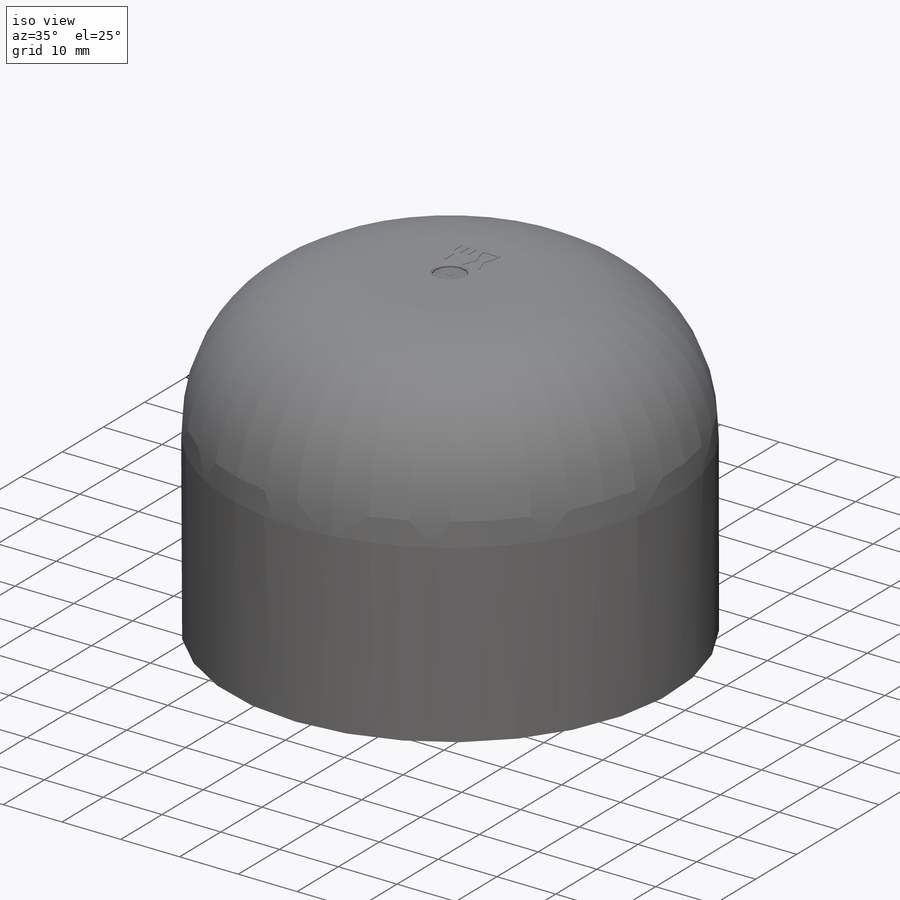
[diagram: iso view]
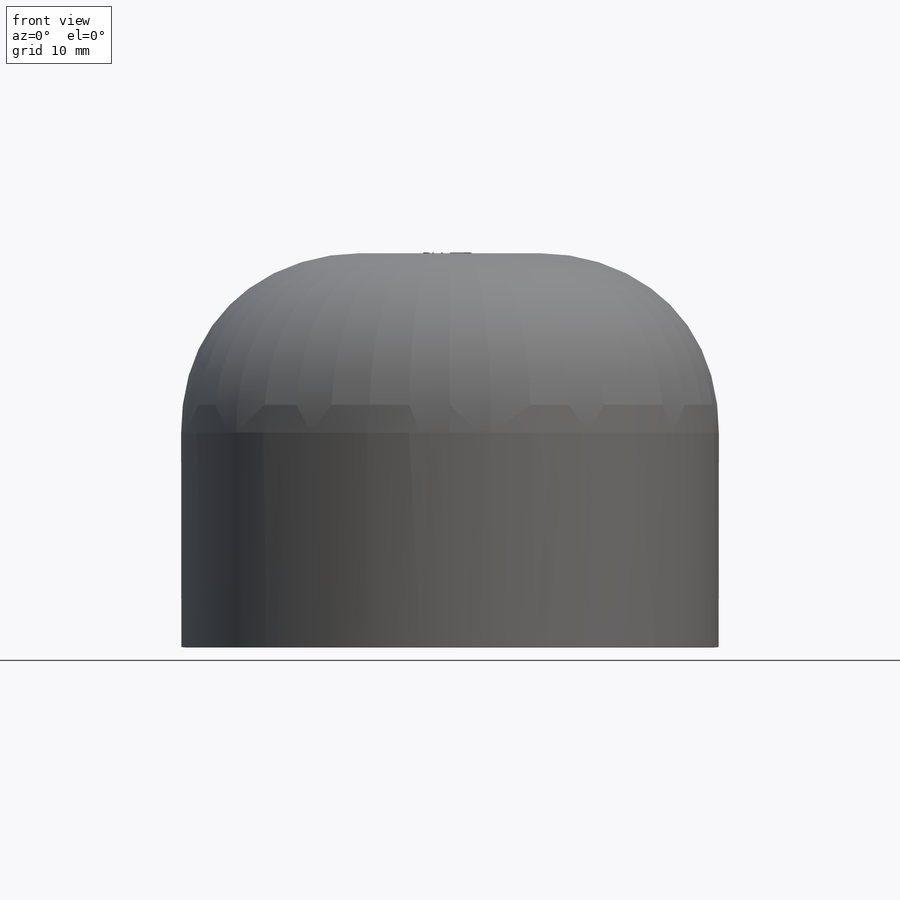
[diagram: front view]
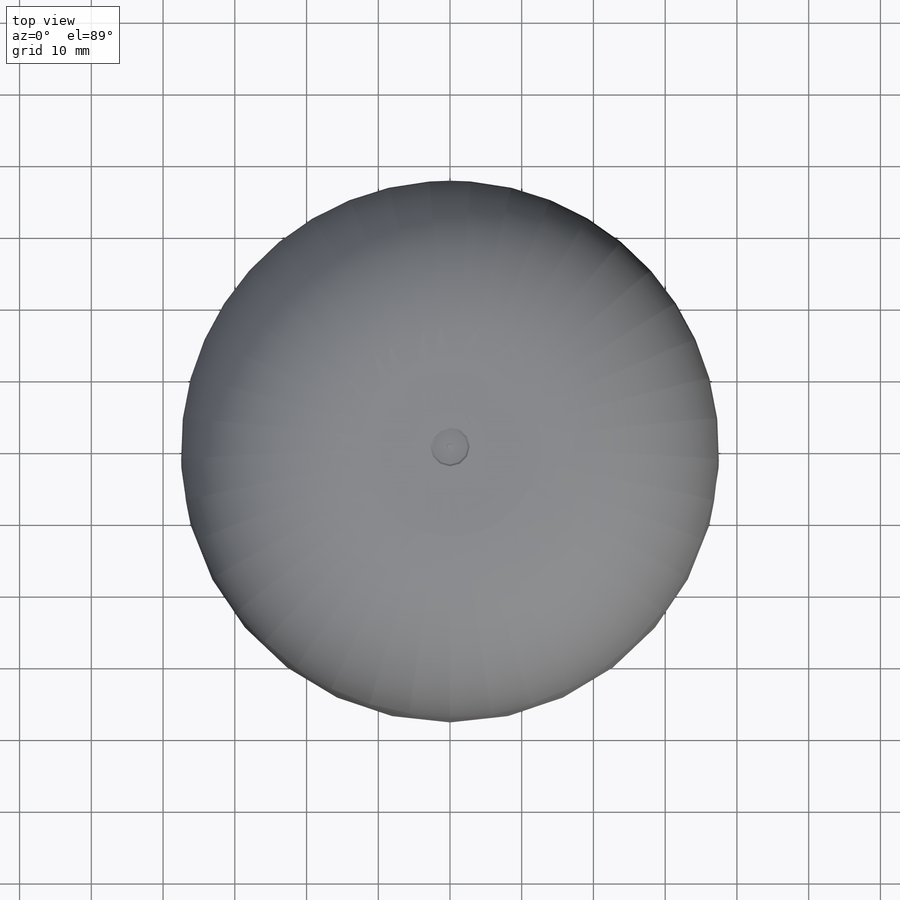
[diagram: top view]
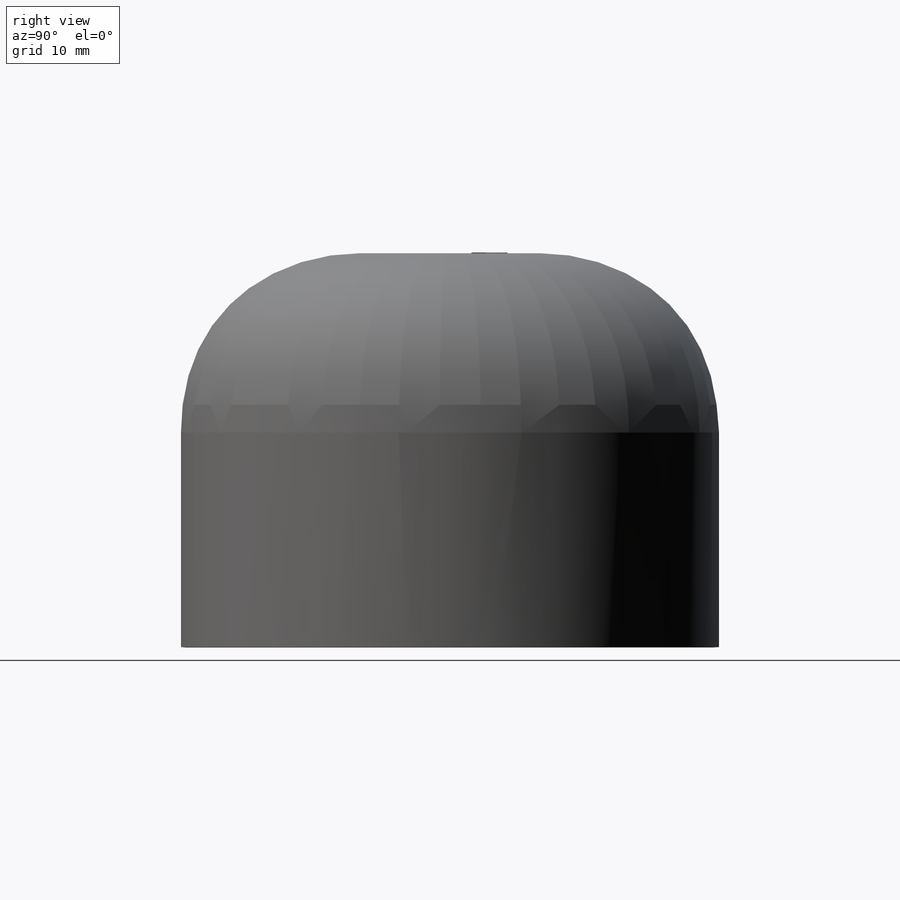
[diagram: right view]
SOLIDWORKS PART (.sldprt)
format: sldprt  version: not decoded by parser v0  size: 395,776 bytes
history: native  units: mm
features: sketch x10, extrude x6, cut_extrude x3, chamfer x3, material x1 (+11 scaffold rows collapsed)
feature tree (34):
  scaffold x11  (default folders/planes/origin — collapsed)
  material  "PP Copolymer"
  sketch  "Sketch1"  dims[c1.D1=30.0mm c1.D2=37.5mm c1.D3=12.5mm c1.D4=25.0mm c2.D1=360.0deg c3.D1=0.75mm]
  sketch  "Sketch2"  dims[D1=5.0mm]
  cut_extrude  "Cut-Extrude1"  Depth=0.5mm
  chamfer  "Chamfer1"  Distance=0.25mm Angle=45deg
  sketch  "Sketch4"  dims[D1=47.0mm D2=1.0mm D3=74.5mm]
  cut_extrude  "Cut-Extrude4"  Depth=0.25mm
  sketch  "Sketch5"  dims[D1=74.5mm D2=1.0mm D3=50.0mm]
  cut_extrude  "Cut-Extrude5"  Depth=0.25mm
  sketch  "Sketch7"  dims[c1.D1=3.0mm c1.D2=0.25mm c1.D3=8.0mm c1.D4=2.0mm c1.D5=0.0mm c1.D6=0.25mm c1.D7=0.25mm c1.D8=0.25mm c1.D9=0.25mm c1.D10=3.0mm c1.D11=2.0mm c1.D12=0.25mm c1.D13=0.25mm c1.D14=0.25mm c2.D12=~0.918575mm]
  extrude  "Boss-Extrude1"  Depth=0.1mm
  extrude  "Boss-Extrude3"  [1 undecoded]
  sketch  "Sketch7<4>"  dims[D1=0.1mm]
  extrude  "Boss-Extrude4"  [1 undecoded]
  sketch  "Sketch7<5>"  dims[D1=0.1mm]
  sketch  "Sketch8"
  extrude  "Boss-Extrude5"  Depth=0.1mm
  chamfer  "Chamfer3"  Distance=0.05mm Angle=45deg
  sketch  "Sketch9"  dims[D1=6.0mm]
  extrude  "Boss-Extrude6"  Depth=0.25mm
  chamfer  "Chamfer4"  Distance=0.1mm Angle=85deg
  sketch  "Sketch10"
  extrude  "Boss-Extrude7"  Depth=0.1mm
decode coverage: 18 of 22 modeling features carry decoded parameters
note: ~ marks probable driven/reference dimensions
note: 2 parameter values undecoded
note: suppression state not decoded; provenance and decode notes live in map.json
